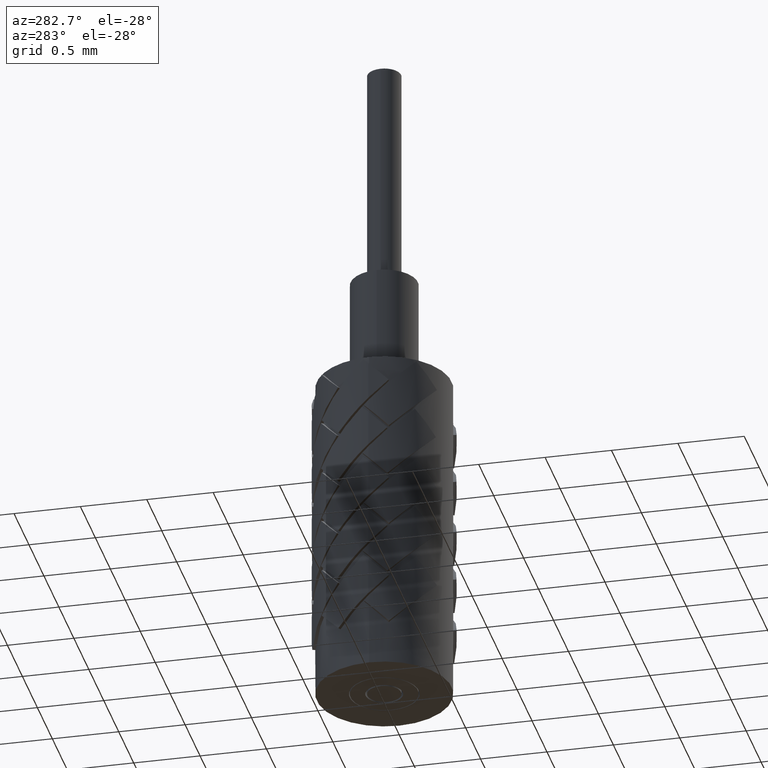
[diagram: clean part render]
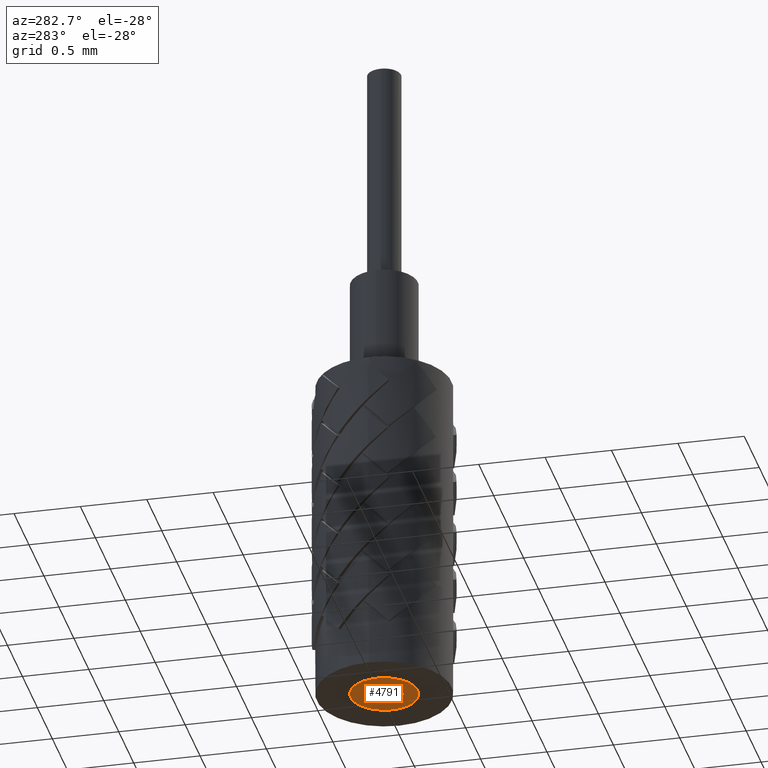
[diagram: same view with one face highlighted and labeled with its STEP entity id]
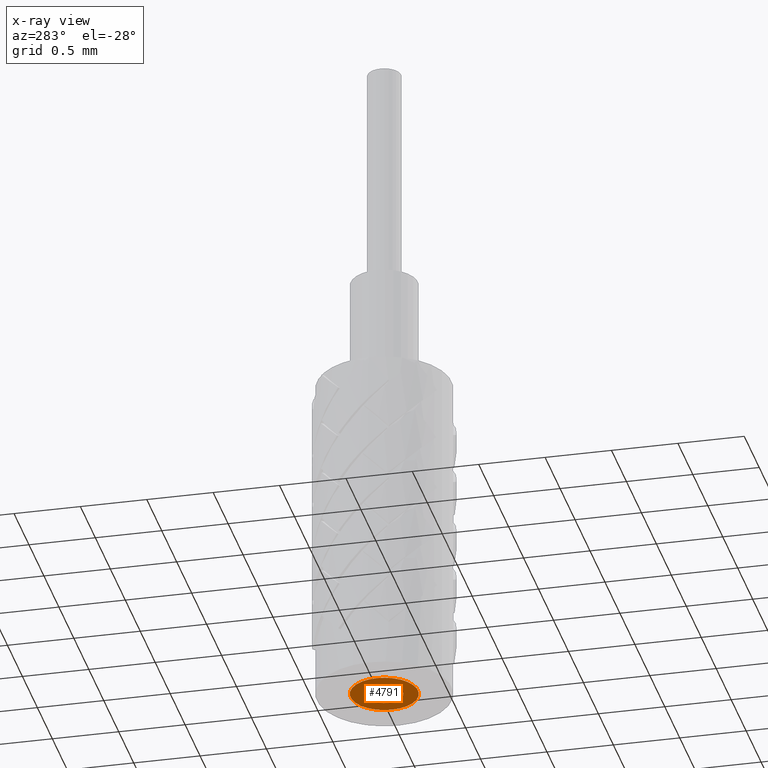
[diagram: x-ray of the same camera — body ghosted, the highlighted face saturated]
A machine part, auxiliary view. The second image highlights one B-rep face of the part: STEP entity #4791.
The next image is the same camera in x-ray: the body ghosted, the highlighted face saturated — about 0% of this face is hidden behind the body in this view.
In plain terms, the highlighted planar face has unit normal (-0, 0, -1).
Its self-contained STEP definition (entity closure, byte-faithful):
#110 = ORIENTED_EDGE ( 'NONE', *, *, #521, .F. ) ;
#125 = ORIENTED_EDGE ( 'NONE', *, *, #527, .T. ) ;
#126 = ORIENTED_EDGE ( 'NONE', *, *, #433, .T. ) ;
#154 = ORIENTED_EDGE ( 'NONE', *, *, #6265, .F. ) ;
#375 = CIRCLE ( 'NONE', #1350, 0.01000000000000000000 ) ;
#391 = CIRCLE ( 'NONE', #1353, 0.01000000000000000000 ) ;
#395 = CIRCLE ( 'NONE', #1352, 0.005505532448318572000 ) ;
#433 = EDGE_CURVE ( 'NONE', #6037, #6036, #375, .T. ) ;
#521 = EDGE_CURVE ( 'NONE', #6044, #6035, #395, .T. ) ;
#527 = EDGE_CURVE ( 'NONE', #6036, #6037, #391, .T. ) ;
#1350 = AXIS2_PLACEMENT_3D ( 'NONE', #6601, #6519, #6641 ) ;
#1352 = AXIS2_PLACEMENT_3D ( 'NONE', #6534, #6661, #6582 ) ;
#1353 = AXIS2_PLACEMENT_3D ( 'NONE', #6531, #2376, #2378 ) ;
#1806 = EDGE_LOOP ( 'NONE', ( #110, #154 ) ) ;
#1809 = EDGE_LOOP ( 'NONE', ( #126, #125 ) ) ;
#2376 = DIRECTION ( 'NONE',  ( -0.0000000000000000000, -0.0000000000000000000, -1.000000000000000000 ) ) ;
#2378 = DIRECTION ( 'NONE',  ( -1.000000000000000000, 0.0000000000000000000, 0.0000000000000000000 ) ) ;
#2590 = FACE_OUTER_BOUND ( 'NONE', #1809, .T. ) ;
#2600 = FACE_BOUND ( 'NONE', #1806, .T. ) ;
#2618 = CIRCLE ( 'NONE', #3805, 0.005505532448318572000 ) ;
#3095 = CARTESIAN_POINT ( 'NONE',  ( 0.0000000000000000000, 0.0000000000000000000, 0.0000000000000000000 ) ) ;
#3096 = DIRECTION ( 'NONE',  ( -0.0000000000000000000, -0.0000000000000000000, -1.000000000000000000 ) ) ;
#3097 = DIRECTION ( 'NONE',  ( -1.000000000000000000, 0.0000000000000000000, 0.0000000000000000000 ) ) ;
#3796 = AXIS2_PLACEMENT_3D ( 'NONE', #6301, #6306, #6307 ) ;
#3805 = AXIS2_PLACEMENT_3D ( 'NONE', #3095, #3096, #3097 ) ;
#4791 = ADVANCED_FACE ( 'NONE', ( #2590, #2600 ), #6304, .T. ) ;
#6035 = VERTEX_POINT ( 'NONE', #6361 ) ;
#6036 = VERTEX_POINT ( 'NONE', #6326 ) ;
#6037 = VERTEX_POINT ( 'NONE', #6362 ) ;
#6044 = VERTEX_POINT ( 'NONE', #6329 ) ;
#6265 = EDGE_CURVE ( 'NONE', #6035, #6044, #2618, .T. ) ;
#6301 = CARTESIAN_POINT ( 'NONE',  ( 0.0000000000000000000, 0.005505532448318572000, 0.0000000000000000000 ) ) ;
#6304 = PLANE ( 'NONE',  #3796 ) ;
#6306 = DIRECTION ( 'NONE',  ( -0.0000000000000000000, 0.0000000000000000000, -1.000000000000000000 ) ) ;
#6307 = DIRECTION ( 'NONE',  ( -1.000000000000000000, 0.0000000000000000000, 0.0000000000000000000 ) ) ;
#6326 = CARTESIAN_POINT ( 'NONE',  ( 0.01000000000000000000, 1.224646799147353400E-018, 0.0000000000000000000 ) ) ;
#6329 = CARTESIAN_POINT ( 'NONE',  ( -0.005505532448318572000, 0.0000000000000000000, 0.0000000000000000000 ) ) ;
#6361 = CARTESIAN_POINT ( 'NONE',  ( 0.005505532448318572000, 6.742332690435231500E-019, 0.0000000000000000000 ) ) ;
#6362 = CARTESIAN_POINT ( 'NONE',  ( -0.01000000000000000000, 0.0000000000000000000, 0.0000000000000000000 ) ) ;
#6519 = DIRECTION ( 'NONE',  ( -0.0000000000000000000, -0.0000000000000000000, -1.000000000000000000 ) ) ;
#6531 = CARTESIAN_POINT ( 'NONE',  ( 0.0000000000000000000, 0.0000000000000000000, 0.0000000000000000000 ) ) ;
#6534 = CARTESIAN_POINT ( 'NONE',  ( 0.0000000000000000000, 0.0000000000000000000, 0.0000000000000000000 ) ) ;
#6582 = DIRECTION ( 'NONE',  ( -1.000000000000000000, 0.0000000000000000000, 0.0000000000000000000 ) ) ;
#6601 = CARTESIAN_POINT ( 'NONE',  ( 0.0000000000000000000, 0.0000000000000000000, 0.0000000000000000000 ) ) ;
#6641 = DIRECTION ( 'NONE',  ( -1.000000000000000000, 0.0000000000000000000, 0.0000000000000000000 ) ) ;
#6661 = DIRECTION ( 'NONE',  ( -0.0000000000000000000, -0.0000000000000000000, -1.000000000000000000 ) ) ;